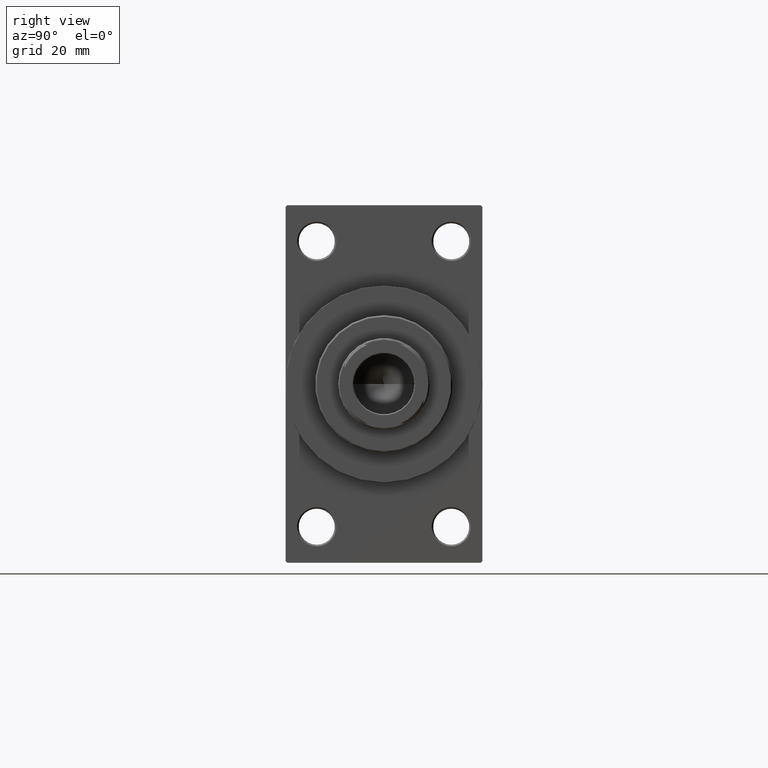
[diagram: clean part render]
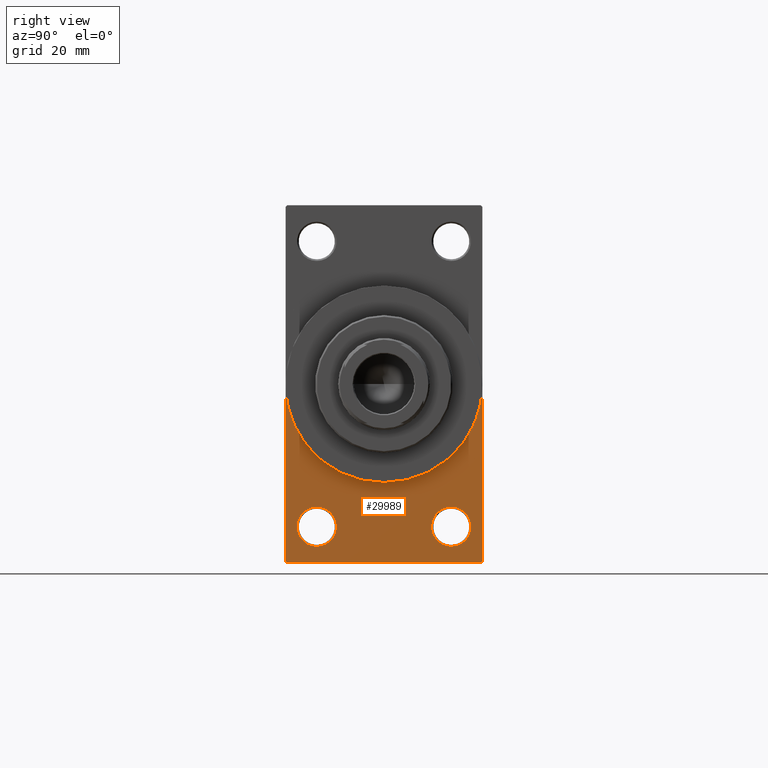
[diagram: same view with one face highlighted and labeled with its STEP entity id]
A machine part, right view. The second image highlights one B-rep face of the part: STEP entity #29989.
In plain terms, the highlighted planar face has unit normal (-1, 0, 0).
Its self-contained STEP definition (entity closure, byte-faithful):
#891 = CARTESIAN_POINT ( 'NONE',  ( 138.0000000000000000, -20.50000000000000000, -49.50000000000008527 ) ) ;
#1151 = ORIENTED_EDGE ( 'NONE', *, *, #34759, .T. ) ;
#1389 = EDGE_CURVE ( 'NONE', #38853, #38547, #45710, .T. ) ;
#1654 = DIRECTION ( 'NONE',  ( 0.000000000000000000, 0.000000000000000000, 1.000000000000000000 ) ) ;
#1797 = PLANE ( 'NONE',  #28339 ) ;
#1866 = CARTESIAN_POINT ( 'NONE',  ( 138.0000000000000000, -30.00000000000000000, 0.000000000000000000 ) ) ;
#2098 = VERTEX_POINT ( 'NONE', #1866 ) ;
#2506 = FACE_OUTER_BOUND ( 'NONE', #43732, .T. ) ;
#2598 = DIRECTION ( 'NONE',  ( 0.000000000000000000, 0.000000000000000000, 1.000000000000000000 ) ) ;
#3208 = ORIENTED_EDGE ( 'NONE', *, *, #1389, .F. ) ;
#3399 = AXIS2_PLACEMENT_3D ( 'NONE', #23420, #45854, #1654 ) ;
#3710 = DIRECTION ( 'NONE',  ( -0.000000000000000000, 0.7071067811865474617, 0.7071067811865474617 ) ) ;
#4130 = CARTESIAN_POINT ( 'NONE',  ( 138.0000000000000000, -30.00000000000000000, -53.99999999999998579 ) ) ;
#4494 = EDGE_CURVE ( 'NONE', #2098, #33941, #33386, .T. ) ;
#4591 = VECTOR ( 'NONE', #8193, 1000.000000000000000 ) ;
#6093 = FACE_BOUND ( 'NONE', #46361, .T. ) ;
#6426 = CARTESIAN_POINT ( 'NONE',  ( 138.0000000000000000, 29.99999999999999645, -54.49999999999999289 ) ) ;
#6483 = ORIENTED_EDGE ( 'NONE', *, *, #14354, .T. ) ;
#6940 = EDGE_CURVE ( 'NONE', #25856, #38547, #35517, .T. ) ;
#8193 = DIRECTION ( 'NONE',  ( 0.000000000000000000, 0.7071067811865352493, -0.7071067811865597852 ) ) ;
#8905 = DIRECTION ( 'NONE',  ( 0.000000000000000000, 0.000000000000000000, 1.000000000000000000 ) ) ;
#9507 = CARTESIAN_POINT ( 'NONE',  ( 138.0000000000000000, -29.50000000000000355, -54.50000000000000000 ) ) ;
#9521 = CIRCLE ( 'NONE', #3399, 6.000000000000088818 ) ;
#10031 = DIRECTION ( 'NONE',  ( 0.000000000000000000, -1.000000000000000000, -1.156482317317871478E-16 ) ) ;
#10801 = DIRECTION ( 'NONE',  ( 0.000000000000000000, 0.000000000000000000, -1.000000000000000000 ) ) ;
#11561 = EDGE_CURVE ( 'NONE', #33941, #38853, #40950, .T. ) ;
#12885 = CARTESIAN_POINT ( 'NONE',  ( 138.0000000000000000, 20.50000000000000000, -43.50000000000000000 ) ) ;
#13773 = CARTESIAN_POINT ( 'NONE',  ( 138.0000000000000000, 29.99999999999999645, -53.99999999999999289 ) ) ;
#14354 = EDGE_CURVE ( 'NONE', #35704, #45342, #27213, .T. ) ;
#14404 = VERTEX_POINT ( 'NONE', #32587 ) ;
#15387 = CARTESIAN_POINT ( 'NONE',  ( 138.0000000000000000, 20.50000000000000000, -43.50000000000000000 ) ) ;
#16293 = CARTESIAN_POINT ( 'NONE',  ( 138.0000000000000000, -20.50000000000000000, -37.49999999999990763 ) ) ;
#16733 = CARTESIAN_POINT ( 'NONE',  ( 138.0000000000000000, 3.673940397442059178E-15, -30.00000000000000000 ) ) ;
#17098 = DIRECTION ( 'NONE',  ( -1.000000000000000000, 0.000000000000000000, -0.000000000000000000 ) ) ;
#19316 = AXIS2_PLACEMENT_3D ( 'NONE', #15387, #30672, #8905 ) ;
#20255 = DIRECTION ( 'NONE',  ( 1.000000000000000000, 0.000000000000000000, 0.000000000000000000 ) ) ;
#20330 = ORIENTED_EDGE ( 'NONE', *, *, #24752, .T. ) ;
#21436 = CARTESIAN_POINT ( 'NONE',  ( 138.0000000000000000, 30.00000000000000000, 0.000000000000000000 ) ) ;
#21939 = EDGE_CURVE ( 'NONE', #25856, #22988, #34656, .T. ) ;
#21955 = CARTESIAN_POINT ( 'NONE',  ( 138.0000000000000000, 29.99999999999999645, -53.99999999999999289 ) ) ;
#22988 = VERTEX_POINT ( 'NONE', #9507 ) ;
#23205 = EDGE_LOOP ( 'NONE', ( #1151, #30917 ) ) ;
#23420 = CARTESIAN_POINT ( 'NONE',  ( 138.0000000000000000, -20.50000000000000000, -43.50000000000000000 ) ) ;
#24007 = DIRECTION ( 'NONE',  ( -1.000000000000000000, 0.000000000000000000, -0.000000000000000000 ) ) ;
#24066 = EDGE_CURVE ( 'NONE', #2098, #43516, #38861, .T. ) ;
#24331 = CARTESIAN_POINT ( 'NONE',  ( 138.0000000000000000, 0.000000000000000000, 0.000000000000000000 ) ) ;
#24380 = DIRECTION ( 'NONE',  ( -1.000000000000000000, 0.000000000000000000, -0.000000000000000000 ) ) ;
#24633 = CARTESIAN_POINT ( 'NONE',  ( 138.0000000000000000, 20.50000000000000000, -37.49999999999990763 ) ) ;
#24752 = EDGE_CURVE ( 'NONE', #43516, #22988, #26844, .T. ) ;
#24891 = VECTOR ( 'NONE', #46427, 1000.000000000000000 ) ;
#25038 = AXIS2_PLACEMENT_3D ( 'NONE', #34751, #24007, #45970 ) ;
#25856 = VERTEX_POINT ( 'NONE', #41947 ) ;
#26844 = LINE ( 'NONE', #40935, #4591 ) ;
#27213 = CIRCLE ( 'NONE', #25038, 6.000000000000088818 ) ;
#27428 = ORIENTED_EDGE ( 'NONE', *, *, #24066, .T. ) ;
#27629 = CARTESIAN_POINT ( 'NONE',  ( 138.0000000000000000, 0.000000000000000000, 0.000000000000000000 ) ) ;
#28061 = AXIS2_PLACEMENT_3D ( 'NONE', #24331, #20255, #38647 ) ;
#28339 = AXIS2_PLACEMENT_3D ( 'NONE', #27629, #17098, #42182 ) ;
#29326 = VERTEX_POINT ( 'NONE', #24633 ) ;
#29373 = ORIENTED_EDGE ( 'NONE', *, *, #6940, .T. ) ;
#29989 = ADVANCED_FACE ( 'NONE', ( #6093, #41956, #2506 ), #1797, .F. ) ;
#30672 = DIRECTION ( 'NONE',  ( -1.000000000000000000, 0.000000000000000000, -0.000000000000000000 ) ) ;
#30917 = ORIENTED_EDGE ( 'NONE', *, *, #37330, .T. ) ;
#30973 = CARTESIAN_POINT ( 'NONE',  ( 138.0000000000000000, -30.00000000000000000, 54.50000000000000000 ) ) ;
#31166 = VECTOR ( 'NONE', #3710, 1000.000000000000114 ) ;
#31859 = CARTESIAN_POINT ( 'NONE',  ( 138.0000000000000000, 0.000000000000000000, 0.000000000000000000 ) ) ;
#32379 = AXIS2_PLACEMENT_3D ( 'NONE', #12885, #24380, #2598 ) ;
#32587 = CARTESIAN_POINT ( 'NONE',  ( 138.0000000000000000, 20.50000000000000000, -49.50000000000008527 ) ) ;
#33030 = CIRCLE ( 'NONE', #19316, 6.000000000000088818 ) ;
#33386 = CIRCLE ( 'NONE', #28061, 30.00000000000000000 ) ;
#33941 = VERTEX_POINT ( 'NONE', #16733 ) ;
#34656 = LINE ( 'NONE', #6426, #40402 ) ;
#34751 = CARTESIAN_POINT ( 'NONE',  ( 138.0000000000000000, -20.50000000000000000, -43.50000000000000000 ) ) ;
#34759 = EDGE_CURVE ( 'NONE', #14404, #29326, #33030, .T. ) ;
#35517 = LINE ( 'NONE', #13773, #31166 ) ;
#35704 = VERTEX_POINT ( 'NONE', #16293 ) ;
#37131 = AXIS2_PLACEMENT_3D ( 'NONE', #31859, #40441, #10801 ) ;
#37330 = EDGE_CURVE ( 'NONE', #29326, #14404, #43816, .T. ) ;
#38454 = EDGE_CURVE ( 'NONE', #45342, #35704, #9521, .T. ) ;
#38547 = VERTEX_POINT ( 'NONE', #21955 ) ;
#38573 = ORIENTED_EDGE ( 'NONE', *, *, #11561, .F. ) ;
#38647 = DIRECTION ( 'NONE',  ( 0.000000000000000000, 0.000000000000000000, -1.000000000000000000 ) ) ;
#38853 = VERTEX_POINT ( 'NONE', #21436 ) ;
#38861 = LINE ( 'NONE', #30973, #45021 ) ;
#39268 = CARTESIAN_POINT ( 'NONE',  ( 138.0000000000000000, 29.99999999999999645, 54.49999999999999289 ) ) ;
#40402 = VECTOR ( 'NONE', #10031, 1000.000000000000000 ) ;
#40441 = DIRECTION ( 'NONE',  ( 1.000000000000000000, 0.000000000000000000, 0.000000000000000000 ) ) ;
#40849 = ORIENTED_EDGE ( 'NONE', *, *, #4494, .F. ) ;
#40935 = CARTESIAN_POINT ( 'NONE',  ( 138.0000000000000000, -29.50000000000000355, -54.50000000000000000 ) ) ;
#40950 = CIRCLE ( 'NONE', #37131, 30.00000000000000000 ) ;
#41947 = CARTESIAN_POINT ( 'NONE',  ( 138.0000000000000000, 29.49999999999999645, -54.49999999999999289 ) ) ;
#41956 = FACE_BOUND ( 'NONE', #23205, .T. ) ;
#42182 = DIRECTION ( 'NONE',  ( -0.000000000000000000, 0.000000000000000000, 1.000000000000000000 ) ) ;
#42508 = ORIENTED_EDGE ( 'NONE', *, *, #21939, .F. ) ;
#43274 = ORIENTED_EDGE ( 'NONE', *, *, #38454, .T. ) ;
#43516 = VERTEX_POINT ( 'NONE', #4130 ) ;
#43732 = EDGE_LOOP ( 'NONE', ( #27428, #20330, #42508, #29373, #3208, #38573, #40849 ) ) ;
#43816 = CIRCLE ( 'NONE', #32379, 6.000000000000088818 ) ;
#45021 = VECTOR ( 'NONE', #46009, 1000.000000000000000 ) ;
#45342 = VERTEX_POINT ( 'NONE', #891 ) ;
#45710 = LINE ( 'NONE', #39268, #24891 ) ;
#45854 = DIRECTION ( 'NONE',  ( -1.000000000000000000, 0.000000000000000000, -0.000000000000000000 ) ) ;
#45970 = DIRECTION ( 'NONE',  ( 0.000000000000000000, 0.000000000000000000, 1.000000000000000000 ) ) ;
#46009 = DIRECTION ( 'NONE',  ( 0.000000000000000000, 0.000000000000000000, -1.000000000000000000 ) ) ;
#46361 = EDGE_LOOP ( 'NONE', ( #43274, #6483 ) ) ;
#46427 = DIRECTION ( 'NONE',  ( 0.000000000000000000, 0.000000000000000000, -1.000000000000000000 ) ) ;